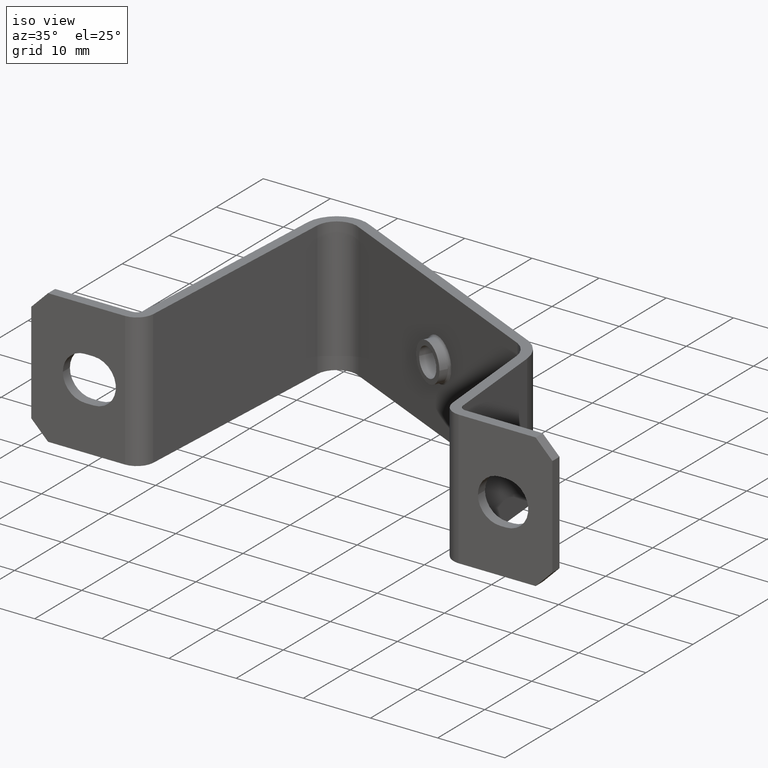
[diagram: clean part render]
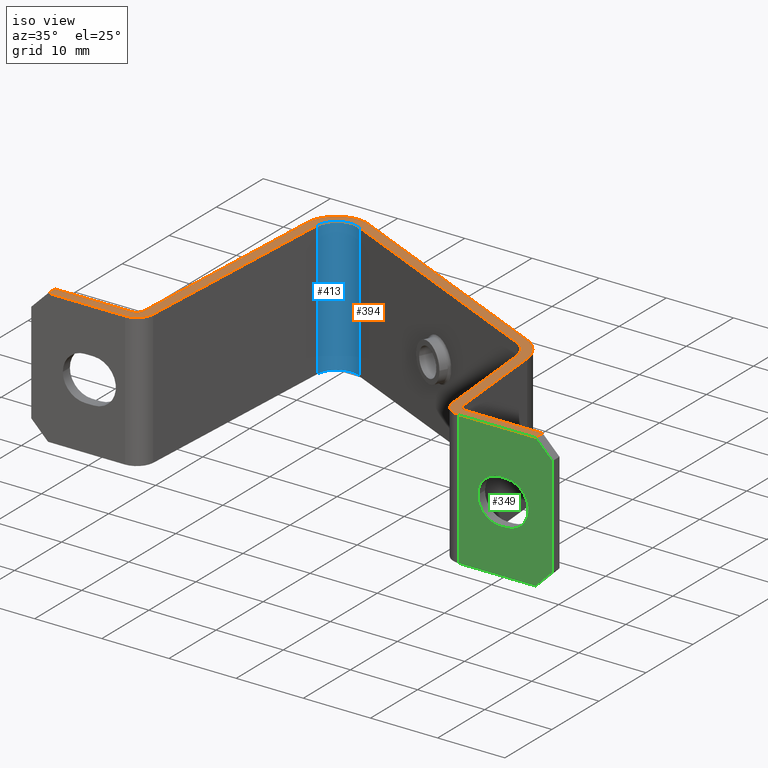
[diagram: same view with three faces highlighted in distinct colors, each labeled with its STEP entity id]
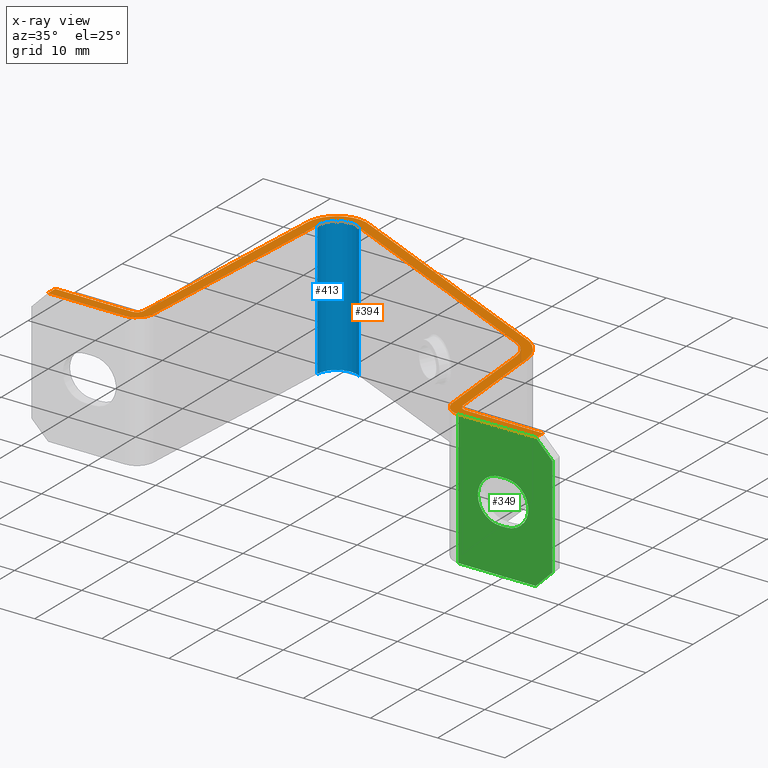
[diagram: x-ray of the same camera — body ghosted, the three highlighted faces saturated]
A machine part, iso view with three faces highlighted in distinct colors.
The next image is the same camera in x-ray (body ghosted, the three faces saturated) — at least one of them is partly hidden behind the body in this view.
Their STEP definitions:

[orange] entity #394 — the highlighted planar face has unit normal (0, 0, 1).
#54 = CARTESIAN_POINT ( 'NONE',  ( 24.81578082241102500, -18.10211123343580300, 20.00000000000000000 ) ) ;
#60 = CARTESIAN_POINT ( 'NONE',  ( -24.84160829073462700, -18.10211123343580300, 20.00000000000000000 ) ) ;
#77 = CARTESIAN_POINT ( 'NONE',  ( -23.80796172078579400, -17.15628235473013800, 20.00000000000000000 ) ) ;
#85 = CARTESIAN_POINT ( 'NONE',  ( -15.36119539260161600, 18.99922555046600100, 20.00000000000000000 ) ) ;
#91 = CARTESIAN_POINT ( 'NONE',  ( 18.91641958941489300, 1.402966336341363400, 20.00000000000000000 ) ) ;
#101 = CARTESIAN_POINT ( 'NONE',  ( 22.39549042891845300, -1.581778693683322900, 20.00000000000000000 ) ) ;
#102 = CARTESIAN_POINT ( 'NONE',  ( 22.26712193765796100, -17.32508999304764800, 20.00000000000000000 ) ) ;
#107 = CARTESIAN_POINT ( 'NONE',  ( 23.76141398479526100, -17.19435637892365800, 20.00000000000000000 ) ) ;
#108 = CARTESIAN_POINT ( 'NONE',  ( 36.29832989701936400, -19.60211123343563200, 20.00000000000000000 ) ) ;
#110 = CARTESIAN_POINT ( 'NONE',  ( -36.29832989701935000, -18.10211123343593800, 20.00000000000000400 ) ) ;
#116 = CARTESIAN_POINT ( 'NONE',  ( -22.10502829899677100, 15.33762303652876100, 20.00000000000000000 ) ) ;
#120 = CARTESIAN_POINT ( 'NONE',  ( 19.66641958941341500, 2.702004442018529400, 20.00000000000000000 ) ) ;
#121 = CARTESIAN_POINT ( 'NONE',  ( -20.60708399686504700, 15.25911910216449700, 20.00000000000000000 ) ) ;
#136 = CARTESIAN_POINT ( 'NONE',  ( -22.31001741865414800, -17.23478628909931500, 20.00000000000000000 ) ) ;
#144 = CARTESIAN_POINT ( 'NONE',  ( 20.90119838178151200, -1.712512307805548200, 20.00000000000000000 ) ) ;
#146 = CARTESIAN_POINT ( 'NONE',  ( -24.84160829073302100, -19.60211123343582400, 20.00000000000000000 ) ) ;
#153 = CARTESIAN_POINT ( 'NONE',  ( 36.29832989701922200, -18.10211123343578500, 19.99999999999985100 ) ) ;
#157 = CARTESIAN_POINT ( 'NONE',  ( -16.11119539260111800, 17.70018744478909100, 20.00000000000000000 ) ) ;
#165 = CARTESIAN_POINT ( 'NONE',  ( -36.29832989701935000, -19.60211123343578500, 20.00000000000000400 ) ) ;
#168 = CARTESIAN_POINT ( 'NONE',  ( 24.81578082240423900, -19.60211123343531300, 20.00000000000000000 ) ) ;
#199 = CARTESIAN_POINT ( 'NONE',  ( -1.072085797398896200, -19.60211123343531300, 20.00000000000000000 ) ) ;
#204 = LINE ( 'NONE', #207, #1676 ) ;
#207 = CARTESIAN_POINT ( 'NONE',  ( 30.80930168860675200, -2.482419717295680800, 20.00000000000000000 ) ) ;
#209 = LINE ( 'NONE', #199, #1678 ) ;
#211 = DIRECTION ( 'NONE',  ( 0.9066685746074657500, -0.4218436864755312800, -0.0000000000000000000 ) ) ;
#228 = DIRECTION ( 'NONE',  ( 1.000000000000000000, 0.0000000000000000000, -0.0000000000000000000 ) ) ;
#288 = EDGE_CURVE ( 'NONE', #1341, #1344, #1545, .T. ) ;
#298 = EDGE_CURVE ( 'NONE', #1339, #1341, #535, .T. ) ;
#301 = EDGE_CURVE ( 'NONE', #1293, #1292, #500, .T. ) ;
#302 = EDGE_CURVE ( 'NONE', #1335, #1327, #1558, .T. ) ;
#319 = EDGE_CURVE ( 'NONE', #1344, #1335, #546, .T. ) ;
#328 = EDGE_CURVE ( 'NONE', #1259, #1293, #1609, .T. ) ;
#335 = EDGE_CURVE ( 'NONE', #1279, #1357, #616, .T. ) ;
#337 = EDGE_CURVE ( 'NONE', #1292, #1339, #583, .T. ) ;
#343 = EDGE_CURVE ( 'NONE', #1307, #1252, #1632, .T. ) ;
#347 = EDGE_CURVE ( 'NONE', #1357, #1307, #709, .T. ) ;
#354 = EDGE_CURVE ( 'NONE', #1345, #1324, #707, .T. ) ;
#371 = EDGE_CURVE ( 'NONE', #1324, #1356, #1638, .T. ) ;
#373 = EDGE_CURVE ( 'NONE', #1334, #1259, #842, .T. ) ;
#376 = EDGE_CURVE ( 'NONE', #1327, #1317, #868, .T. ) ;
#380 = EDGE_CURVE ( 'NONE', #1338, #1318, #1694, .T. ) ;
#381 = EDGE_CURVE ( 'NONE', #1320, #1334, #1664, .T. ) ;
#387 = EDGE_CURVE ( 'NONE', #1317, #1345, #1687, .T. ) ;
#394 = ADVANCED_FACE ( 'NONE', ( #973 ), #943, .T. ) ;
#400 = EDGE_CURVE ( 'NONE', #1252, #1318, #964, .T. ) ;
#408 = EDGE_CURVE ( 'NONE', #1320, #1338, #204, .T. ) ;
#410 = EDGE_CURVE ( 'NONE', #1356, #1279, #209, .T. ) ;
#463 = CARTESIAN_POINT ( 'NONE',  ( -24.86755580986388400, -17.03707326306874800, 20.00000000000000000 ) ) ;
#473 = DIRECTION ( 'NONE',  ( -1.000000000000000000, -1.352521674512483800E-015, 0.0000000000000000000 ) ) ;
#479 = DIRECTION ( 'NONE',  ( 0.0000000000000000000, 0.0000000000000000000, 1.000000000000000000 ) ) ;
#497 = DIRECTION ( 'NONE',  ( 1.000000000000000000, 0.0000000000000000000, -0.0000000000000000000 ) ) ;
#500 = LINE ( 'NONE', #510, #1597 ) ;
#501 = DIRECTION ( 'NONE',  ( -1.000000000000000000, -0.0000000000000000000, 0.0000000000000000000 ) ) ;
#504 = DIRECTION ( 'NONE',  ( -1.000000000000000000, 0.0000000000000000000, 0.0000000000000000000 ) ) ;
#505 = CARTESIAN_POINT ( 'NONE',  ( -1.072085797398896200, -19.60211123343580300, 20.00000000000000000 ) ) ;
#510 = CARTESIAN_POINT ( 'NONE',  ( -1.072085797398896200, -18.10211123343580300, 20.00000000000000000 ) ) ;
#511 = DIRECTION ( 'NONE',  ( -0.0000000000000000000, -0.0000000000000000000, -1.000000000000000000 ) ) ;
#535 = LINE ( 'NONE', #505, #1553 ) ;
#536 = CARTESIAN_POINT ( 'NONE',  ( -17.61119539260125300, 15.10211123343579900, 20.00000000000000000 ) ) ;
#546 = LINE ( 'NONE', #563, #1557 ) ;
#563 = CARTESIAN_POINT ( 'NONE',  ( -22.31001741865413000, -17.23478628909902400, 20.00000000000000000 ) ) ;
#565 = DIRECTION ( 'NONE',  ( 0.05233595624293496000, 0.9986295347545743900, 0.0000000000000000000 ) ) ;
#583 = LINE ( 'NONE', #587, #1630 ) ;
#587 = CARTESIAN_POINT ( 'NONE',  ( -36.29832989701935700, -71.00508125088650500, 20.00000000000000400 ) ) ;
#588 = CARTESIAN_POINT ( 'NONE',  ( -24.86829296509274200, -17.03522556889397400, 20.00000000000000000 ) ) ;
#593 = DIRECTION ( 'NONE',  ( -1.480297366166865700E-013, 1.000000000000000000, -1.480297366166873500E-013 ) ) ;
#602 = DIRECTION ( 'NONE',  ( -0.0000000000000000000, -0.0000000000000000000, -1.000000000000000000 ) ) ;
#616 = LINE ( 'NONE', #620, #1634 ) ;
#620 = CARTESIAN_POINT ( 'NONE',  ( 36.29832989702697400, -71.00508125087469600, 20.00000000000761000 ) ) ;
#626 = DIRECTION ( 'NONE',  ( -1.000000000000000000, 0.0000000000000000000, 0.0000000000000000000 ) ) ;
#648 = DIRECTION ( 'NONE',  ( -0.0000000000000000000, -1.000000000000000000, -0.0000000000000000000 ) ) ;
#653 = CARTESIAN_POINT ( 'NONE',  ( 24.86273630038882100, -16.98136542211398100, 20.00000000000000000 ) ) ;
#654 = DIRECTION ( 'NONE',  ( -0.0000000000000000000, -0.0000000000000000000, -1.000000000000000000 ) ) ;
#707 = LINE ( 'NONE', #730, #1610 ) ;
#709 = LINE ( 'NONE', #723, #1648 ) ;
#716 = DIRECTION ( 'NONE',  ( -1.000000000000000000, 0.0000000000000000000, 0.0000000000000000000 ) ) ;
#717 = DIRECTION ( 'NONE',  ( -1.000000000000000000, -0.0000000000000000000, 0.0000000000000000000 ) ) ;
#723 = CARTESIAN_POINT ( 'NONE',  ( -1.072085797398896200, -18.10211123343580300, 20.00000000000000000 ) ) ;
#730 = CARTESIAN_POINT ( 'NONE',  ( 20.90119838178150500, -1.712512307805447200, 20.00000000000000000 ) ) ;
#746 = DIRECTION ( 'NONE',  ( 0.08715574274765430800, -0.9961946980917458800, 0.0000000000000000000 ) ) ;
#801 = DIRECTION ( 'NONE',  ( 0.0000000000000000000, 0.0000000000000000000, 1.000000000000000000 ) ) ;
#817 = DIRECTION ( 'NONE',  ( -1.000000000000000000, 0.0000000000000000000, 0.0000000000000000000 ) ) ;
#830 = CARTESIAN_POINT ( 'NONE',  ( 24.86044504889228800, -16.98725736556289000, 20.00000000000000000 ) ) ;
#842 = LINE ( 'NONE', #849, #1640 ) ;
#847 = DIRECTION ( 'NONE',  ( -0.0000000000000000000, -0.0000000000000000000, -1.000000000000000000 ) ) ;
#848 = DIRECTION ( 'NONE',  ( -1.000000000000000000, 0.0000000000000000000, 0.0000000000000000000 ) ) ;
#849 = CARTESIAN_POINT ( 'NONE',  ( -22.10502829899673900, 15.33762303652848400, 20.00000000000000000 ) ) ;
#853 = DIRECTION ( 'NONE',  ( 0.0000000000000000000, 0.0000000000000000000, 1.000000000000000000 ) ) ;
#854 = DIRECTION ( 'NONE',  ( -1.000000000000000000, 0.0000000000000000000, 0.0000000000000000000 ) ) ;
#856 = CARTESIAN_POINT ( 'NONE',  ( -17.61119539260125300, 15.10211123343579900, 20.00000000000000000 ) ) ;
#858 = CARTESIAN_POINT ( 'NONE',  ( 16.91641958941403300, -2.061135278796311100, 20.00000000000000000 ) ) ;
#868 = LINE ( 'NONE', #874, #1625 ) ;
#869 = DIRECTION ( 'NONE',  ( 0.9066685746074674100, -0.4218436864755277200, 0.0000000000000000000 ) ) ;
#874 = CARTESIAN_POINT ( 'NONE',  ( -16.11119539260119600, 17.70018744478913000, 20.00000000000000000 ) ) ;
#880 = DIRECTION ( 'NONE',  ( -0.05233595624294235000, -0.9986295347545739400, 0.0000000000000000000 ) ) ;
#882 = DIRECTION ( 'NONE',  ( -1.000000000000000000, 0.0000000000000000000, 0.0000000000000000000 ) ) ;
#902 = CARTESIAN_POINT ( 'NONE',  ( 16.91641958941403300, -2.061135278796311100, 20.00000000000000000 ) ) ;
#903 = DIRECTION ( 'NONE',  ( -0.0000000000000000000, -0.0000000000000000000, -1.000000000000000000 ) ) ;
#938 = DIRECTION ( 'NONE',  ( 1.000000000000000000, 0.0000000000000000000, -0.0000000000000000000 ) ) ;
#943 = PLANE ( 'NONE',  #1699 ) ;
#947 = DIRECTION ( 'NONE',  ( 0.0000000000000000000, 0.0000000000000000000, 1.000000000000000000 ) ) ;
#964 = LINE ( 'NONE', #978, #1670 ) ;
#968 = CARTESIAN_POINT ( 'NONE',  ( -1.072085797398896200, -71.00508125088650500, 20.00000000000000000 ) ) ;
#973 = FACE_OUTER_BOUND ( 'NONE', #1020, .T. ) ;
#978 = CARTESIAN_POINT ( 'NONE',  ( 23.76141398479525400, -17.19435637892358000, 20.00000000000000000 ) ) ;
#979 = DIRECTION ( 'NONE',  ( -0.08715574274769320700, 0.9961946980917425500, 0.0000000000000000000 ) ) ;
#1020 = EDGE_LOOP ( 'NONE', ( #1189, #1185, #1240, #1225, #1181, #1269, #1300, #1253, #1208, #1233, #1227, #1193, #1270, #1255, #1303, #1218, #1241, #1268, #1235, #1254 ) ) ;
#1181 = ORIENTED_EDGE ( 'NONE', *, *, #298, .T. ) ;
#1185 = ORIENTED_EDGE ( 'NONE', *, *, #328, .T. ) ;
#1189 = ORIENTED_EDGE ( 'NONE', *, *, #373, .T. ) ;
#1193 = ORIENTED_EDGE ( 'NONE', *, *, #371, .T. ) ;
#1208 = ORIENTED_EDGE ( 'NONE', *, *, #376, .T. ) ;
#1218 = ORIENTED_EDGE ( 'NONE', *, *, #343, .T. ) ;
#1225 = ORIENTED_EDGE ( 'NONE', *, *, #337, .T. ) ;
#1227 = ORIENTED_EDGE ( 'NONE', *, *, #354, .T. ) ;
#1233 = ORIENTED_EDGE ( 'NONE', *, *, #387, .T. ) ;
#1235 = ORIENTED_EDGE ( 'NONE', *, *, #408, .F. ) ;
#1240 = ORIENTED_EDGE ( 'NONE', *, *, #301, .T. ) ;
#1241 = ORIENTED_EDGE ( 'NONE', *, *, #400, .T. ) ;
#1252 = VERTEX_POINT ( 'NONE', #107 ) ;
#1253 = ORIENTED_EDGE ( 'NONE', *, *, #302, .T. ) ;
#1254 = ORIENTED_EDGE ( 'NONE', *, *, #381, .T. ) ;
#1255 = ORIENTED_EDGE ( 'NONE', *, *, #335, .T. ) ;
#1259 = VERTEX_POINT ( 'NONE', #77 ) ;
#1268 = ORIENTED_EDGE ( 'NONE', *, *, #380, .F. ) ;
#1269 = ORIENTED_EDGE ( 'NONE', *, *, #288, .T. ) ;
#1270 = ORIENTED_EDGE ( 'NONE', *, *, #410, .T. ) ;
#1279 = VERTEX_POINT ( 'NONE', #108 ) ;
#1292 = VERTEX_POINT ( 'NONE', #110 ) ;
#1293 = VERTEX_POINT ( 'NONE', #60 ) ;
#1300 = ORIENTED_EDGE ( 'NONE', *, *, #319, .T. ) ;
#1303 = ORIENTED_EDGE ( 'NONE', *, *, #347, .T. ) ;
#1307 = VERTEX_POINT ( 'NONE', #54 ) ;
#1317 = VERTEX_POINT ( 'NONE', #91 ) ;
#1318 = VERTEX_POINT ( 'NONE', #101 ) ;
#1320 = VERTEX_POINT ( 'NONE', #85 ) ;
#1324 = VERTEX_POINT ( 'NONE', #102 ) ;
#1327 = VERTEX_POINT ( 'NONE', #157 ) ;
#1334 = VERTEX_POINT ( 'NONE', #116 ) ;
#1335 = VERTEX_POINT ( 'NONE', #121 ) ;
#1338 = VERTEX_POINT ( 'NONE', #120 ) ;
#1339 = VERTEX_POINT ( 'NONE', #165 ) ;
#1341 = VERTEX_POINT ( 'NONE', #146 ) ;
#1344 = VERTEX_POINT ( 'NONE', #136 ) ;
#1345 = VERTEX_POINT ( 'NONE', #144 ) ;
#1356 = VERTEX_POINT ( 'NONE', #168 ) ;
#1357 = VERTEX_POINT ( 'NONE', #153 ) ;
#1545 = CIRCLE ( 'NONE', #1587, 2.565169207513200000 ) ;
#1553 = VECTOR ( 'NONE', #497, 1000.000000000000000 ) ;
#1557 = VECTOR ( 'NONE', #565, 1000.000000000000100 ) ;
#1558 = CIRCLE ( 'NONE', #1588, 3.000000000000054600 ) ;
#1587 = AXIS2_PLACEMENT_3D ( 'NONE', #463, #479, #473 ) ;
#1588 = AXIS2_PLACEMENT_3D ( 'NONE', #536, #511, #504 ) ;
#1597 = VECTOR ( 'NONE', #501, 1000.000000000000000 ) ;
#1609 = CIRCLE ( 'NONE', #1631, 1.067219327528543800 ) ;
#1610 = VECTOR ( 'NONE', #746, 1000.000000000000000 ) ;
#1625 = VECTOR ( 'NONE', #869, 1000.000000000000100 ) ;
#1630 = VECTOR ( 'NONE', #648, 1000.000000000000000 ) ;
#1631 = AXIS2_PLACEMENT_3D ( 'NONE', #588, #602, #626 ) ;
#1632 = CIRCLE ( 'NONE', #1653, 1.121729018304814300 ) ;
#1634 = VECTOR ( 'NONE', #593, 1000.000000000000000 ) ;
#1638 = CIRCLE ( 'NONE', #1657, 2.615235294090238600 ) ;
#1640 = VECTOR ( 'NONE', #880, 1000.000000000000100 ) ;
#1648 = VECTOR ( 'NONE', #717, 1000.000000000000000 ) ;
#1653 = AXIS2_PLACEMENT_3D ( 'NONE', #653, #654, #716 ) ;
#1657 = AXIS2_PLACEMENT_3D ( 'NONE', #830, #801, #817 ) ;
#1664 = CIRCLE ( 'NONE', #1680, 4.499999999999968900 ) ;
#1670 = VECTOR ( 'NONE', #979, 999.9999999999998900 ) ;
#1672 = AXIS2_PLACEMENT_3D ( 'NONE', #902, #903, #882 ) ;
#1676 = VECTOR ( 'NONE', #211, 1000.000000000000000 ) ;
#1678 = VECTOR ( 'NONE', #228, 1000.000000000000000 ) ;
#1680 = AXIS2_PLACEMENT_3D ( 'NONE', #856, #853, #854 ) ;
#1687 = CIRCLE ( 'NONE', #1672, 4.000000000000389000 ) ;
#1694 = CIRCLE ( 'NONE', #1700, 5.499999999999976900 ) ;
#1699 = AXIS2_PLACEMENT_3D ( 'NONE', #968, #947, #938 ) ;
#1700 = AXIS2_PLACEMENT_3D ( 'NONE', #858, #847, #848 ) ;

[blue] entity #413 — the highlighted cylindrical surface (edge-blend (fillet) strip) has radius 3 mm, axis along (-0, -0, -1).
#121 = CARTESIAN_POINT ( 'NONE',  ( -20.60708399686504700, 15.25911910216449700, 20.00000000000000000 ) ) ;
#135 = CARTESIAN_POINT ( 'NONE',  ( -20.60708399686504700, 15.25911910216449700, 0.0000000000000000000 ) ) ;
#157 = CARTESIAN_POINT ( 'NONE',  ( -16.11119539260111800, 17.70018744478909100, 20.00000000000000000 ) ) ;
#159 = CARTESIAN_POINT ( 'NONE',  ( -16.11119539260111800, 17.70018744478909100, -2.602085213965210600E-015 ) ) ;
#200 = DIRECTION ( 'NONE',  ( -0.0000000000000000000, -0.0000000000000000000, -1.000000000000000000 ) ) ;
#202 = DIRECTION ( 'NONE',  ( -1.000000000000000000, 0.0000000000000000000, 0.0000000000000000000 ) ) ;
#216 = CARTESIAN_POINT ( 'NONE',  ( -17.61119539260125300, 15.10211123343579900, 20.00000000000000000 ) ) ;
#234 = CYLINDRICAL_SURFACE ( 'NONE', #1685, 3.000000000000054600 ) ;
#243 = FACE_OUTER_BOUND ( 'NONE', #989, .T. ) ;
#302 = EDGE_CURVE ( 'NONE', #1335, #1327, #1558, .T. ) ;
#305 = EDGE_CURVE ( 'NONE', #1350, #1335, #495, .T. ) ;
#340 = EDGE_CURVE ( 'NONE', #1327, #1355, #664, .T. ) ;
#392 = EDGE_CURVE ( 'NONE', #1350, #1355, #1697, .T. ) ;
#413 = ADVANCED_FACE ( 'NONE', ( #243 ), #234, .F. ) ;
#495 = LINE ( 'NONE', #527, #1576 ) ;
#504 = DIRECTION ( 'NONE',  ( -1.000000000000000000, 0.0000000000000000000, 0.0000000000000000000 ) ) ;
#511 = DIRECTION ( 'NONE',  ( -0.0000000000000000000, -0.0000000000000000000, -1.000000000000000000 ) ) ;
#521 = DIRECTION ( 'NONE',  ( 0.0000000000000000000, 0.0000000000000000000, 1.000000000000000000 ) ) ;
#527 = CARTESIAN_POINT ( 'NONE',  ( -20.60708399686504300, 15.25911910216438700, 20.00000000000000000 ) ) ;
#536 = CARTESIAN_POINT ( 'NONE',  ( -17.61119539260125300, 15.10211123343579900, 20.00000000000000000 ) ) ;
#633 = CARTESIAN_POINT ( 'NONE',  ( -16.11119539260120300, 17.70018744478913300, 20.00000000000000000 ) ) ;
#634 = DIRECTION ( 'NONE',  ( -0.0000000000000000000, -0.0000000000000000000, -1.000000000000000000 ) ) ;
#664 = LINE ( 'NONE', #633, #1662 ) ;
#935 = DIRECTION ( 'NONE',  ( -0.0000000000000000000, -0.0000000000000000000, -1.000000000000000000 ) ) ;
#936 = DIRECTION ( 'NONE',  ( -1.000000000000000000, 0.0000000000000000000, 0.0000000000000000000 ) ) ;
#949 = CARTESIAN_POINT ( 'NONE',  ( -17.61119539260125300, 15.10211123343579900, 0.0000000000000000000 ) ) ;
#989 = EDGE_LOOP ( 'NONE', ( #1186, #1179, #1239, #1125 ) ) ;
#1125 = ORIENTED_EDGE ( 'NONE', *, *, #392, .T. ) ;
#1179 = ORIENTED_EDGE ( 'NONE', *, *, #302, .F. ) ;
#1186 = ORIENTED_EDGE ( 'NONE', *, *, #340, .F. ) ;
#1239 = ORIENTED_EDGE ( 'NONE', *, *, #305, .F. ) ;
#1327 = VERTEX_POINT ( 'NONE', #157 ) ;
#1335 = VERTEX_POINT ( 'NONE', #121 ) ;
#1350 = VERTEX_POINT ( 'NONE', #135 ) ;
#1355 = VERTEX_POINT ( 'NONE', #159 ) ;
#1558 = CIRCLE ( 'NONE', #1588, 3.000000000000054600 ) ;
#1576 = VECTOR ( 'NONE', #521, 1000.000000000000000 ) ;
#1588 = AXIS2_PLACEMENT_3D ( 'NONE', #536, #511, #504 ) ;
#1662 = VECTOR ( 'NONE', #634, 1000.000000000000000 ) ;
#1685 = AXIS2_PLACEMENT_3D ( 'NONE', #216, #200, #202 ) ;
#1697 = CIRCLE ( 'NONE', #1704, 3.000000000000054600 ) ;
#1704 = AXIS2_PLACEMENT_3D ( 'NONE', #949, #935, #936 ) ;

[green] entity #349 — the highlighted planar face has unit normal (-0, -1, 0).
#58 = CARTESIAN_POINT ( 'NONE',  ( 27.69832989701888300, -19.60211123343543700, 9.999999999999996400 ) ) ;
#66 = CARTESIAN_POINT ( 'NONE',  ( 38.79832989701937200, -19.60211123343589900, 17.50000000000000400 ) ) ;
#67 = CARTESIAN_POINT ( 'NONE',  ( 31.89832989701889300, -19.60211123343560400, 6.699999999999997500 ) ) ;
#69 = CARTESIAN_POINT ( 'NONE',  ( 30.99832989701857500, -19.60211123343557900, 6.699999999999994000 ) ) ;
#71 = CARTESIAN_POINT ( 'NONE',  ( 30.99832989701888400, -19.60211123343556100, 13.29999999999999900 ) ) ;
#108 = CARTESIAN_POINT ( 'NONE',  ( 36.29832989701936400, -19.60211123343563200, 20.00000000000000000 ) ) ;
#137 = CARTESIAN_POINT ( 'NONE',  ( 38.79832989701929300, -19.60211123343586000, 2.499999999999889000 ) ) ;
#152 = CARTESIAN_POINT ( 'NONE',  ( 36.29832989701935000, -19.60211123343561800, -2.844852691227826100E-015 ) ) ;
#164 = CARTESIAN_POINT ( 'NONE',  ( 24.81578082240423900, -19.60211123343531300, 0.0000000000000000000 ) ) ;
#166 = CARTESIAN_POINT ( 'NONE',  ( 31.89832989701887200, -19.60211123343560400, 13.29999999999999500 ) ) ;
#168 = CARTESIAN_POINT ( 'NONE',  ( 24.81578082240423900, -19.60211123343531300, 20.00000000000000000 ) ) ;
#199 = CARTESIAN_POINT ( 'NONE',  ( -1.072085797398896200, -19.60211123343531300, 20.00000000000000000 ) ) ;
#209 = LINE ( 'NONE', #199, #1678 ) ;
#228 = DIRECTION ( 'NONE',  ( 1.000000000000000000, 0.0000000000000000000, -0.0000000000000000000 ) ) ;
#270 = EDGE_CURVE ( 'NONE', #1291, #1295, #1514, .T. ) ;
#303 = EDGE_CURVE ( 'NONE', #1277, #1291, #1599, .T. ) ;
#307 = EDGE_CURVE ( 'NONE', #1262, #1277, #519, .T. ) ;
#310 = EDGE_CURVE ( 'NONE', #1295, #1352, #524, .T. ) ;
#312 = EDGE_CURVE ( 'NONE', #1342, #1346, #579, .T. ) ;
#320 = EDGE_CURVE ( 'NONE', #1346, #1280, #570, .T. ) ;
#334 = EDGE_CURVE ( 'NONE', #1280, #1279, #619, .T. ) ;
#349 = ADVANCED_FACE ( 'NONE', ( #708, #714 ), #732, .T. ) ;
#374 = EDGE_CURVE ( 'NONE', #1352, #1262, #1618, .T. ) ;
#393 = EDGE_CURVE ( 'NONE', #1356, #1340, #957, .T. ) ;
#402 = EDGE_CURVE ( 'NONE', #1340, #1342, #547, .T. ) ;
#410 = EDGE_CURVE ( 'NONE', #1356, #1279, #209, .T. ) ;
#503 = CARTESIAN_POINT ( 'NONE',  ( 31.89832989701906000, -19.60211123343561500, 6.699999999999995700 ) ) ;
#506 = CARTESIAN_POINT ( 'NONE',  ( 30.99832989701888400, -19.60211123343557900, 9.999999999999996400 ) ) ;
#515 = DIRECTION ( 'NONE',  ( 4.350953414916061300E-014, 1.000000000000000000, -0.0000000000000000000 ) ) ;
#519 = LINE ( 'NONE', #503, #1542 ) ;
#524 = LINE ( 'NONE', #555, #1555 ) ;
#537 = DIRECTION ( 'NONE',  ( 1.000000000000000000, -4.310525000912065400E-014, 1.051347561198064600E-015 ) ) ;
#538 = CARTESIAN_POINT ( 'NONE',  ( 38.79832989701937200, -19.60211123343591300, 20.00000000000000000 ) ) ;
#539 = DIRECTION ( 'NONE',  ( -1.000000000000000000, 4.350953414916061300E-014, 0.0000000000000000000 ) ) ;
#541 = DIRECTION ( 'NONE',  ( 0.7071067811865500200, -3.042054138699797100E-014, 0.7071067811865451300 ) ) ;
#547 = LINE ( 'NONE', #834, #1696 ) ;
#555 = CARTESIAN_POINT ( 'NONE',  ( 31.89832989701906000, -19.60211123343561500, 13.29999999999999700 ) ) ;
#559 = CARTESIAN_POINT ( 'NONE',  ( 36.29832989701935000, -19.60211123343580700, -3.469446951953614200E-015 ) ) ;
#570 = LINE ( 'NONE', #538, #1568 ) ;
#574 = DIRECTION ( 'NONE',  ( 1.000000000000000000, -4.350953414916061300E-014, 0.0000000000000000000 ) ) ;
#577 = DIRECTION ( 'NONE',  ( 0.0000000000000000000, 0.0000000000000000000, 1.000000000000000000 ) ) ;
#579 = LINE ( 'NONE', #559, #1578 ) ;
#592 = CARTESIAN_POINT ( 'NONE',  ( 38.79832989701937200, -19.60211123343591300, 17.50000000000000400 ) ) ;
#603 = DIRECTION ( 'NONE',  ( -0.7071067811865495700, 3.042054138699811000E-014, 0.7071067811865455700 ) ) ;
#619 = LINE ( 'NONE', #592, #1661 ) ;
#683 = DIRECTION ( 'NONE',  ( 1.000000000000000000, -4.350953414916061300E-014, 0.0000000000000000000 ) ) ;
#708 = FACE_OUTER_BOUND ( 'NONE', #1045, .T. ) ;
#711 = CARTESIAN_POINT ( 'NONE',  ( -1.072085797396659800, -19.60211123343417900, 20.00000000000000000 ) ) ;
#714 = FACE_BOUND ( 'NONE', #1021, .T. ) ;
#727 = DIRECTION ( 'NONE',  ( -4.350953414916061300E-014, -1.000000000000000000, 0.0000000000000000000 ) ) ;
#732 = PLANE ( 'NONE',  #1611 ) ;
#834 = CARTESIAN_POINT ( 'NONE',  ( -1.072085797398896200, -19.60211123343531300, 0.0000000000000000000 ) ) ;
#837 = DIRECTION ( 'NONE',  ( 4.350953414916061300E-014, 1.000000000000000000, -0.0000000000000000000 ) ) ;
#866 = DIRECTION ( 'NONE',  ( 1.000000000000000000, 0.0000000000000000000, -0.0000000000000000000 ) ) ;
#870 = DIRECTION ( 'NONE',  ( 1.000000000000000000, -4.310525000912069800E-014, 0.0000000000000000000 ) ) ;
#876 = CARTESIAN_POINT ( 'NONE',  ( 31.89832989701887200, -19.60211123343561500, 9.999999999999996400 ) ) ;
#937 = DIRECTION ( 'NONE',  ( -0.0000000000000000000, -0.0000000000000000000, -1.000000000000000000 ) ) ;
#950 = CARTESIAN_POINT ( 'NONE',  ( 24.81578082240565300, -19.60211123343530900, 20.00000000000000000 ) ) ;
#957 = LINE ( 'NONE', #950, #1665 ) ;
#1021 = EDGE_LOOP ( 'NONE', ( #1150, #1120, #1166, #1199, #1190 ) ) ;
#1045 = EDGE_LOOP ( 'NONE', ( #1224, #1147, #1126, #1135, #1180, #1127 ) ) ;
#1120 = ORIENTED_EDGE ( 'NONE', *, *, #270, .T. ) ;
#1126 = ORIENTED_EDGE ( 'NONE', *, *, #320, .T. ) ;
#1127 = ORIENTED_EDGE ( 'NONE', *, *, #393, .T. ) ;
#1135 = ORIENTED_EDGE ( 'NONE', *, *, #334, .T. ) ;
#1147 = ORIENTED_EDGE ( 'NONE', *, *, #312, .T. ) ;
#1150 = ORIENTED_EDGE ( 'NONE', *, *, #303, .T. ) ;
#1166 = ORIENTED_EDGE ( 'NONE', *, *, #310, .T. ) ;
#1180 = ORIENTED_EDGE ( 'NONE', *, *, #410, .F. ) ;
#1190 = ORIENTED_EDGE ( 'NONE', *, *, #307, .T. ) ;
#1199 = ORIENTED_EDGE ( 'NONE', *, *, #374, .T. ) ;
#1224 = ORIENTED_EDGE ( 'NONE', *, *, #402, .T. ) ;
#1262 = VERTEX_POINT ( 'NONE', #67 ) ;
#1277 = VERTEX_POINT ( 'NONE', #69 ) ;
#1279 = VERTEX_POINT ( 'NONE', #108 ) ;
#1280 = VERTEX_POINT ( 'NONE', #66 ) ;
#1291 = VERTEX_POINT ( 'NONE', #58 ) ;
#1295 = VERTEX_POINT ( 'NONE', #71 ) ;
#1340 = VERTEX_POINT ( 'NONE', #164 ) ;
#1342 = VERTEX_POINT ( 'NONE', #152 ) ;
#1346 = VERTEX_POINT ( 'NONE', #137 ) ;
#1352 = VERTEX_POINT ( 'NONE', #166 ) ;
#1356 = VERTEX_POINT ( 'NONE', #168 ) ;
#1365 = DIRECTION ( 'NONE',  ( 1.000000000000000000, -4.310525000912065400E-014, 0.0000000000000000000 ) ) ;
#1390 = CARTESIAN_POINT ( 'NONE',  ( 30.99832989701888400, -19.60211123343557900, 9.999999999999996400 ) ) ;
#1403 = DIRECTION ( 'NONE',  ( 4.350953414916061300E-014, 1.000000000000000000, -0.0000000000000000000 ) ) ;
#1514 = CIRCLE ( 'NONE', #1533, 3.300000000000000700 ) ;
#1533 = AXIS2_PLACEMENT_3D ( 'NONE', #1390, #1403, #1365 ) ;
#1542 = VECTOR ( 'NONE', #539, 1000.000000000000000 ) ;
#1555 = VECTOR ( 'NONE', #574, 1000.000000000000000 ) ;
#1568 = VECTOR ( 'NONE', #577, 1000.000000000000000 ) ;
#1578 = VECTOR ( 'NONE', #541, 1000.000000000000100 ) ;
#1586 = AXIS2_PLACEMENT_3D ( 'NONE', #506, #515, #537 ) ;
#1599 = CIRCLE ( 'NONE', #1586, 3.300000000000000700 ) ;
#1611 = AXIS2_PLACEMENT_3D ( 'NONE', #711, #727, #683 ) ;
#1618 = CIRCLE ( 'NONE', #1642, 3.299999999999997200 ) ;
#1642 = AXIS2_PLACEMENT_3D ( 'NONE', #876, #837, #870 ) ;
#1661 = VECTOR ( 'NONE', #603, 1000.000000000000100 ) ;
#1665 = VECTOR ( 'NONE', #937, 1000.000000000000000 ) ;
#1678 = VECTOR ( 'NONE', #228, 1000.000000000000000 ) ;
#1696 = VECTOR ( 'NONE', #866, 1000.000000000000000 ) ;